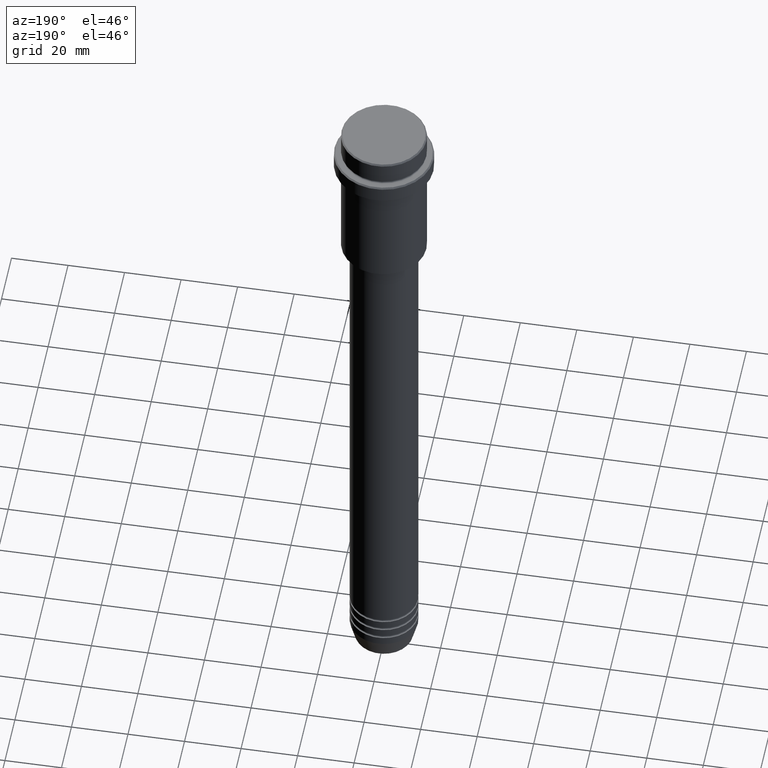
[diagram: clean part render]
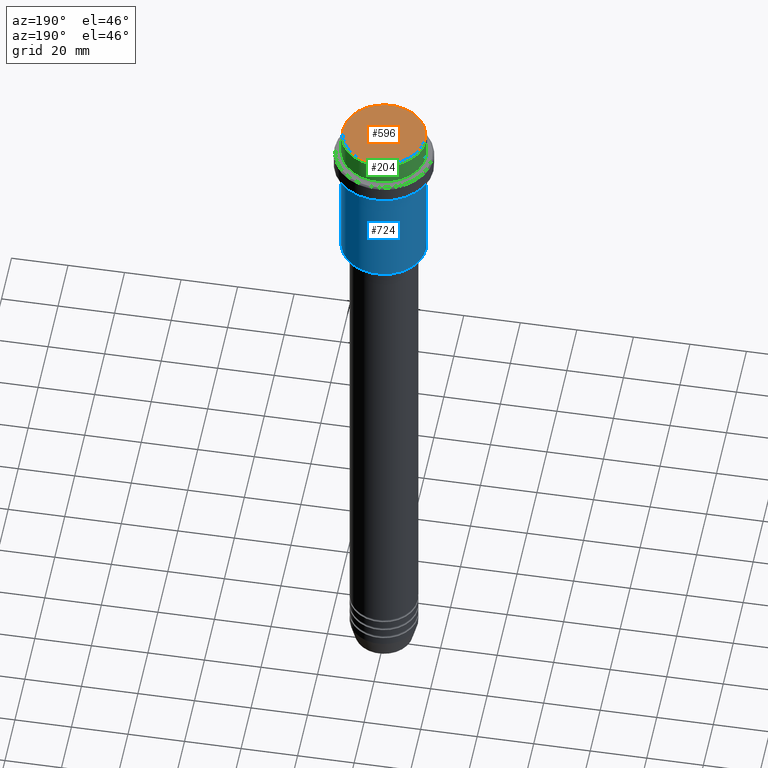
[diagram: same view with three faces highlighted in distinct colors, each labeled with its STEP entity id]
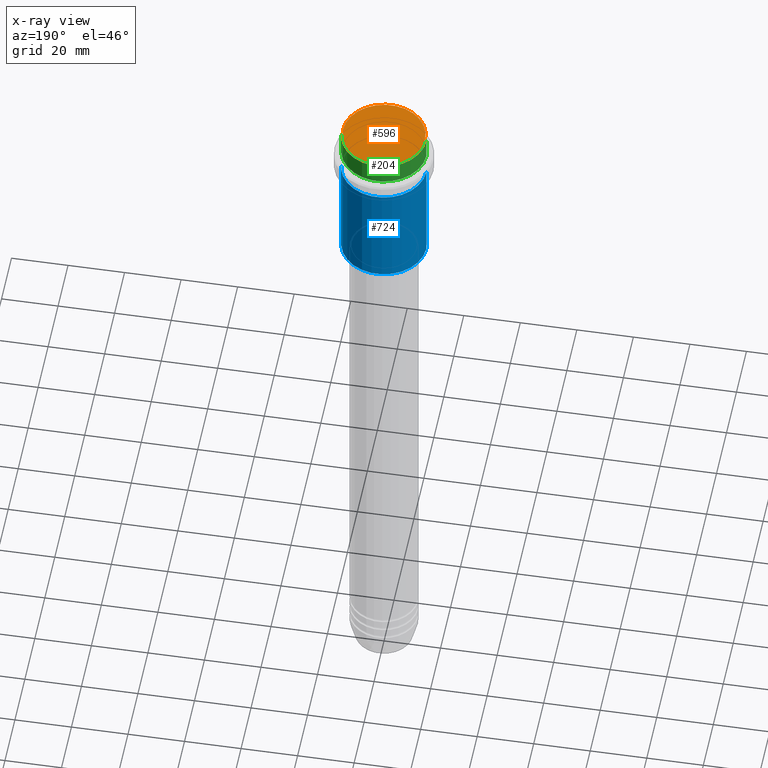
[diagram: x-ray of the same camera — body ghosted, the three highlighted faces saturated]
A machine part, auxiliary view with three faces highlighted in distinct colors.
The next image is the same camera in x-ray (body ghosted, the three faces saturated) — at least one of them is partly hidden behind the body in this view.
Their STEP definitions:

[orange] entity #596 — the highlighted planar face has unit normal (0, -0, 1).
#66 = AXIS2_PLACEMENT_3D ( 'NONE', #756, #1194, #652 ) ;
#70 = EDGE_LOOP ( 'NONE', ( #1154, #1235 ) ) ;
#225 = CARTESIAN_POINT ( 'NONE',  ( -14.49999999999998401, 0.000000000000000000, 0.000000000000000000 ) ) ;
#261 = CARTESIAN_POINT ( 'NONE',  ( 0.000000000000000000, 0.000000000000000000, 0.000000000000000000 ) ) ;
#332 = PLANE ( 'NONE',  #66 ) ;
#348 = CARTESIAN_POINT ( 'NONE',  ( 14.49999999999998401, 1.806354028742345013E-15, 0.000000000000000000 ) ) ;
#418 = VERTEX_POINT ( 'NONE', #225 ) ;
#437 = FACE_OUTER_BOUND ( 'NONE', #70, .T. ) ;
#596 = ADVANCED_FACE ( 'NONE', ( #437 ), #332, .T. ) ;
#597 = CARTESIAN_POINT ( 'NONE',  ( 0.000000000000000000, 0.000000000000000000, 0.000000000000000000 ) ) ;
#616 = DIRECTION ( 'NONE',  ( 1.000000000000000000, 0.000000000000000000, 0.000000000000000000 ) ) ;
#627 = CIRCLE ( 'NONE', #949, 14.49999999999998401 ) ;
#652 = DIRECTION ( 'NONE',  ( 1.000000000000000000, 0.000000000000000000, 0.000000000000000000 ) ) ;
#653 = EDGE_CURVE ( 'NONE', #1009, #418, #1243, .T. ) ;
#715 = EDGE_CURVE ( 'NONE', #418, #1009, #627, .T. ) ;
#756 = CARTESIAN_POINT ( 'NONE',  ( 0.000000000000000000, 0.000000000000000000, 0.000000000000000000 ) ) ;
#764 = AXIS2_PLACEMENT_3D ( 'NONE', #261, #1349, #1113 ) ;
#949 = AXIS2_PLACEMENT_3D ( 'NONE', #597, #1159, #616 ) ;
#1009 = VERTEX_POINT ( 'NONE', #348 ) ;
#1113 = DIRECTION ( 'NONE',  ( 1.000000000000000000, 0.000000000000000000, 0.000000000000000000 ) ) ;
#1154 = ORIENTED_EDGE ( 'NONE', *, *, #715, .T. ) ;
#1159 = DIRECTION ( 'NONE',  ( -0.000000000000000000, -0.000000000000000000, 1.000000000000000000 ) ) ;
#1194 = DIRECTION ( 'NONE',  ( 0.000000000000000000, -0.000000000000000000, 1.000000000000000000 ) ) ;
#1235 = ORIENTED_EDGE ( 'NONE', *, *, #653, .T. ) ;
#1243 = CIRCLE ( 'NONE', #764, 14.49999999999998401 ) ;
#1349 = DIRECTION ( 'NONE',  ( -0.000000000000000000, -0.000000000000000000, 1.000000000000000000 ) ) ;

[blue] entity #724 — the highlighted cylindrical surface (partial cylindrical patch) has radius 15 mm, axis along (-0, -0, 1).
#14 = CARTESIAN_POINT ( 'NONE',  ( 15.00000000000000000, 0.000000000000000000, -54.49999999999998579 ) ) ;
#22 = CARTESIAN_POINT ( 'NONE',  ( 15.00000000000000178, 0.000000000000000000, -16.00000000000000000 ) ) ;
#101 = EDGE_CURVE ( 'NONE', #398, #419, #574, .T. ) ;
#114 = CARTESIAN_POINT ( 'NONE',  ( -15.00000000000000000, 1.836970198721029589E-15, -54.49999999999998579 ) ) ;
#149 = VECTOR ( 'NONE', #894, 1000.000000000000000 ) ;
#183 = EDGE_CURVE ( 'NONE', #1405, #1226, #287, .T. ) ;
#192 = DIRECTION ( 'NONE',  ( -0.000000000000000000, -0.000000000000000000, 1.000000000000000000 ) ) ;
#200 = VECTOR ( 'NONE', #1289, 1000.000000000000000 ) ;
#281 = DIRECTION ( 'NONE',  ( -0.000000000000000000, -0.000000000000000000, 1.000000000000000000 ) ) ;
#287 = CIRCLE ( 'NONE', #1262, 15.00000000000000000 ) ;
#354 = ORIENTED_EDGE ( 'NONE', *, *, #866, .F. ) ;
#398 = VERTEX_POINT ( 'NONE', #22 ) ;
#419 = VERTEX_POINT ( 'NONE', #646 ) ;
#422 = AXIS2_PLACEMENT_3D ( 'NONE', #1012, #281, #1364 ) ;
#452 = CARTESIAN_POINT ( 'NONE',  ( 0.000000000000000000, 0.000000000000000000, -54.49999999999998579 ) ) ;
#460 = EDGE_CURVE ( 'NONE', #1226, #419, #890, .T. ) ;
#515 = ORIENTED_EDGE ( 'NONE', *, *, #183, .T. ) ;
#545 = DIRECTION ( 'NONE',  ( -1.000000000000000000, 0.000000000000000000, 0.000000000000000000 ) ) ;
#574 = CIRCLE ( 'NONE', #422, 15.00000000000000178 ) ;
#589 = CYLINDRICAL_SURFACE ( 'NONE', #806, 15.00000000000000000 ) ;
#646 = CARTESIAN_POINT ( 'NONE',  ( -15.00000000000000355, 1.836970198721029983E-15, -16.00000000000000000 ) ) ;
#703 = DIRECTION ( 'NONE',  ( 1.000000000000000000, 0.000000000000000000, 0.000000000000000000 ) ) ;
#724 = ADVANCED_FACE ( 'NONE', ( #823 ), #589, .T. ) ;
#806 = AXIS2_PLACEMENT_3D ( 'NONE', #1023, #192, #703 ) ;
#823 = FACE_OUTER_BOUND ( 'NONE', #858, .T. ) ;
#858 = EDGE_LOOP ( 'NONE', ( #515, #1348, #962, #354 ) ) ;
#866 = EDGE_CURVE ( 'NONE', #1405, #398, #958, .T. ) ;
#890 = LINE ( 'NONE', #1359, #149 ) ;
#894 = DIRECTION ( 'NONE',  ( -0.000000000000000000, -0.000000000000000000, 1.000000000000000000 ) ) ;
#958 = LINE ( 'NONE', #1087, #200 ) ;
#962 = ORIENTED_EDGE ( 'NONE', *, *, #101, .F. ) ;
#1012 = CARTESIAN_POINT ( 'NONE',  ( 0.000000000000000000, 0.000000000000000000, -16.00000000000000000 ) ) ;
#1023 = CARTESIAN_POINT ( 'NONE',  ( 0.000000000000000000, 0.000000000000000000, 0.000000000000000000 ) ) ;
#1087 = CARTESIAN_POINT ( 'NONE',  ( 15.00000000000000000, 0.000000000000000000, 0.000000000000000000 ) ) ;
#1226 = VERTEX_POINT ( 'NONE', #114 ) ;
#1262 = AXIS2_PLACEMENT_3D ( 'NONE', #452, #1414, #545 ) ;
#1289 = DIRECTION ( 'NONE',  ( -0.000000000000000000, -0.000000000000000000, 1.000000000000000000 ) ) ;
#1348 = ORIENTED_EDGE ( 'NONE', *, *, #460, .T. ) ;
#1359 = CARTESIAN_POINT ( 'NONE',  ( -15.00000000000000000, 1.836970198721029589E-15, 0.000000000000000000 ) ) ;
#1364 = DIRECTION ( 'NONE',  ( 1.000000000000000000, 0.000000000000000000, 0.000000000000000000 ) ) ;
#1405 = VERTEX_POINT ( 'NONE', #14 ) ;
#1414 = DIRECTION ( 'NONE',  ( -0.000000000000000000, -0.000000000000000000, 1.000000000000000000 ) ) ;

[green] entity #204 — the highlighted cylindrical surface (partial cylindrical patch) has radius 15 mm, axis along (-0, -0, 1).
#40 = CIRCLE ( 'NONE', #245, 15.00000000000000000 ) ;
#44 = CARTESIAN_POINT ( 'NONE',  ( 15.00000000000000000, 0.000000000000000000, 0.000000000000000000 ) ) ;
#112 = DIRECTION ( 'NONE',  ( 1.000000000000000000, 0.000000000000000000, 0.000000000000000000 ) ) ;
#194 = EDGE_LOOP ( 'NONE', ( #304, #1014, #357, #584 ) ) ;
#204 = ADVANCED_FACE ( 'NONE', ( #973 ), #224, .T. ) ;
#224 = CYLINDRICAL_SURFACE ( 'NONE', #313, 15.00000000000000000 ) ;
#237 = DIRECTION ( 'NONE',  ( -0.000000000000000000, -0.000000000000000000, 1.000000000000000000 ) ) ;
#245 = AXIS2_PLACEMENT_3D ( 'NONE', #817, #1253, #1137 ) ;
#246 = EDGE_CURVE ( 'NONE', #1088, #719, #647, .T. ) ;
#279 = VERTEX_POINT ( 'NONE', #1095 ) ;
#298 = DIRECTION ( 'NONE',  ( 1.000000000000000000, 0.000000000000000000, 0.000000000000000000 ) ) ;
#304 = ORIENTED_EDGE ( 'NONE', *, *, #246, .T. ) ;
#311 = EDGE_CURVE ( 'NONE', #525, #279, #40, .T. ) ;
#313 = AXIS2_PLACEMENT_3D ( 'NONE', #1387, #1081, #298 ) ;
#355 = EDGE_CURVE ( 'NONE', #719, #525, #1067, .T. ) ;
#357 = ORIENTED_EDGE ( 'NONE', *, *, #311, .T. ) ;
#433 = DIRECTION ( 'NONE',  ( -0.000000000000000000, -0.000000000000000000, 1.000000000000000000 ) ) ;
#457 = DIRECTION ( 'NONE',  ( -0.000000000000000000, -0.000000000000000000, 1.000000000000000000 ) ) ;
#525 = VERTEX_POINT ( 'NONE', #585 ) ;
#584 = ORIENTED_EDGE ( 'NONE', *, *, #1000, .F. ) ;
#585 = CARTESIAN_POINT ( 'NONE',  ( -15.00000000000000000, 1.836970198721029589E-15, -0.5000000000000108802 ) ) ;
#647 = CIRCLE ( 'NONE', #1288, 15.00000000000000000 ) ;
#719 = VERTEX_POINT ( 'NONE', #828 ) ;
#763 = VECTOR ( 'NONE', #433, 1000.000000000000000 ) ;
#817 = CARTESIAN_POINT ( 'NONE',  ( 0.000000000000000000, 0.000000000000000000, -0.5000000000000108802 ) ) ;
#828 = CARTESIAN_POINT ( 'NONE',  ( -15.00000000000000000, 1.836970198721029589E-15, -7.999999999999998224 ) ) ;
#885 = CARTESIAN_POINT ( 'NONE',  ( 0.000000000000000000, 0.000000000000000000, -7.999999999999998224 ) ) ;
#886 = CARTESIAN_POINT ( 'NONE',  ( -15.00000000000000000, 1.836970198721029589E-15, 0.000000000000000000 ) ) ;
#938 = CARTESIAN_POINT ( 'NONE',  ( 15.00000000000000000, 0.000000000000000000, -7.999999999999998224 ) ) ;
#973 = FACE_OUTER_BOUND ( 'NONE', #194, .T. ) ;
#1000 = EDGE_CURVE ( 'NONE', #1088, #279, #1008, .T. ) ;
#1008 = LINE ( 'NONE', #44, #1129 ) ;
#1014 = ORIENTED_EDGE ( 'NONE', *, *, #355, .T. ) ;
#1067 = LINE ( 'NONE', #886, #763 ) ;
#1081 = DIRECTION ( 'NONE',  ( -0.000000000000000000, -0.000000000000000000, 1.000000000000000000 ) ) ;
#1088 = VERTEX_POINT ( 'NONE', #938 ) ;
#1095 = CARTESIAN_POINT ( 'NONE',  ( 15.00000000000000000, 0.000000000000000000, -0.5000000000000108802 ) ) ;
#1129 = VECTOR ( 'NONE', #457, 1000.000000000000000 ) ;
#1137 = DIRECTION ( 'NONE',  ( 1.000000000000000000, 0.000000000000000000, 0.000000000000000000 ) ) ;
#1253 = DIRECTION ( 'NONE',  ( 0.000000000000000000, 0.000000000000000000, -1.000000000000000000 ) ) ;
#1288 = AXIS2_PLACEMENT_3D ( 'NONE', #885, #237, #112 ) ;
#1387 = CARTESIAN_POINT ( 'NONE',  ( 0.000000000000000000, 0.000000000000000000, 0.000000000000000000 ) ) ;